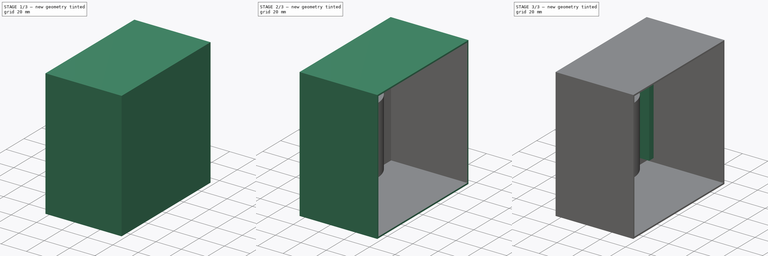
[diagram: build sequence overview — one tinted view per stage of 3, left to right]
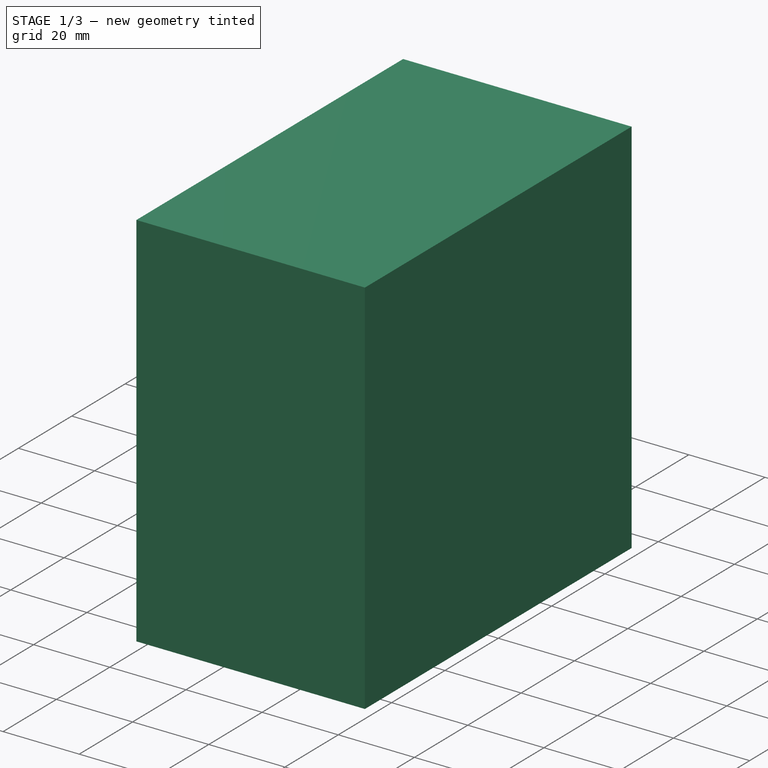
[diagram: stage 1 of 3 — iso view after this stage's code; geometry added in this stage tinted green]
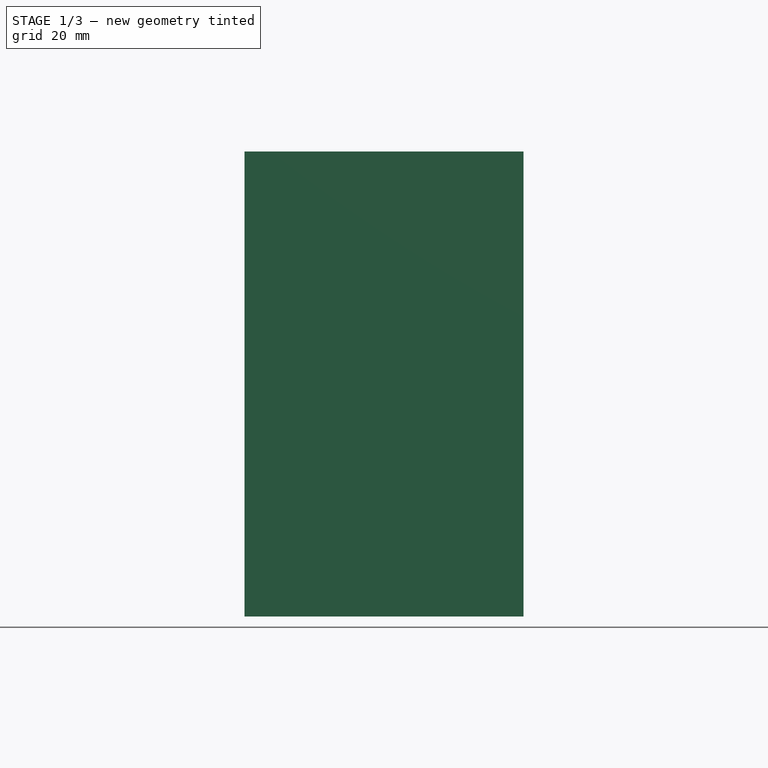
[diagram: stage 1 of 3 — front view after this stage's code; geometry added in this stage tinted green]
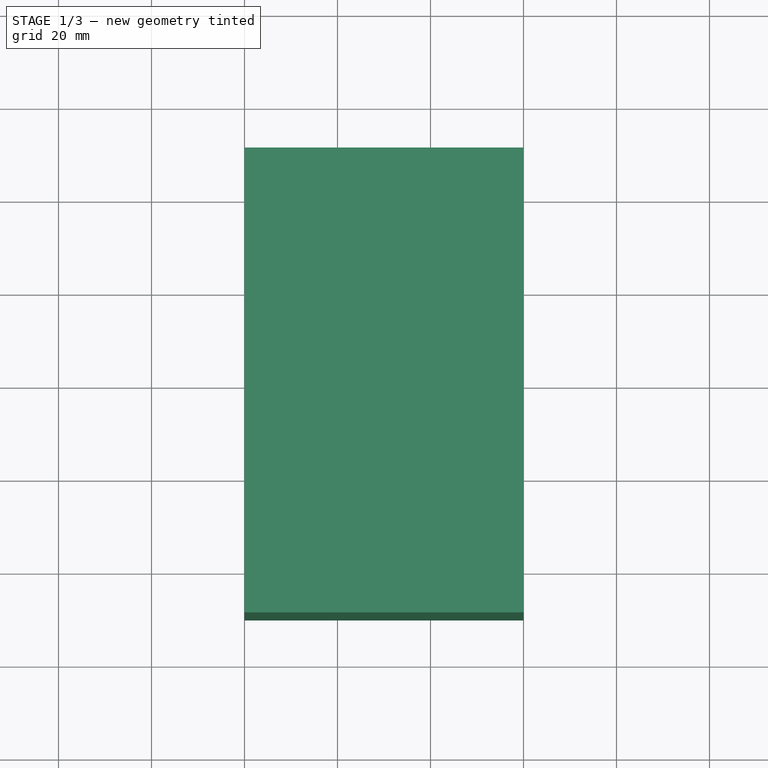
[diagram: stage 1 of 3 — top view after this stage's code; geometry added in this stage tinted green]
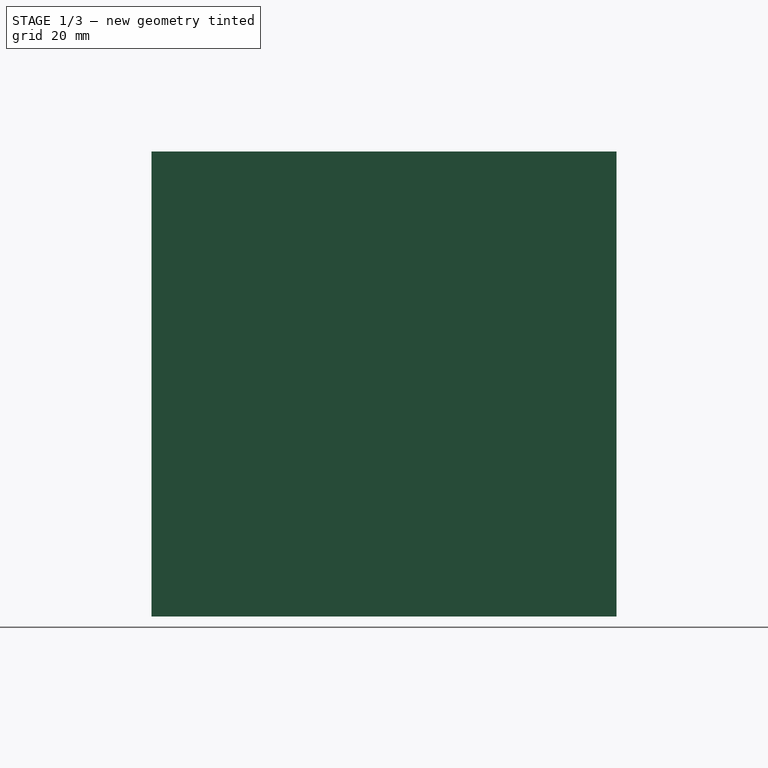
[diagram: stage 1 of 3 — right view after this stage's code; geometry added in this stage tinted green]
FCSTD DOCUMENT  (FreeCAD 0.22R38261 (Git))
Label: форма
License: All rights reserved
LicenseURL: https://en.wikipedia.org/wiki/All_rights_reserved
objects: Sketcher::SketchObject×4, PartDesign::Pad×2, PartDesign::AdditiveBox×1, PartDesign::Groove×1, PartDesign::Thickness×1, PartDesign::Plane×1, PartDesign::Body×1, App::Part×1
note: 21 computed .brp shape members not serialized (recipe doc carries the construction recipe); baked Part::Feature solids carry a one-line shape summary decoded from their .brp

FEATURE [Sketcher::SketchObject] Sketch
  AttachmentSupport = -> [YZ_Plane001]
  FullyConstrained = true
  MapMode = 5
  Placement = pos=(0,0,0) rot=(0.57735,0.57735,0.57735;2.0944rad)
  sketch-geometry (10):
    g0: LineSegment StartX=-20 StartY=0 StartZ=0 EndX=-7 EndY=13 EndZ=0
    g1: LineSegment StartX=-7 StartY=13 StartZ=0 EndX=-24 EndY=13 EndZ=0
    g2: LineSegment StartX=-24 StartY=13 StartZ=0 EndX=-24 EndY=66 EndZ=0
    g3: LineSegment StartX=-24 StartY=66 StartZ=0 EndX=0 EndY=66 EndZ=0
    g4: LineSegment StartX=0 StartY=66 StartZ=0 EndX=0 EndY=63 EndZ=0
    g5: LineSegment StartX=0 StartY=63 StartZ=0 EndX=-21 EndY=63 EndZ=0
    g6: LineSegment StartX=-21 StartY=63 StartZ=0 EndX=-21 EndY=16 EndZ=0
    g7: LineSegment StartX=-21 StartY=16 StartZ=0 EndX=-1 EndY=16 EndZ=0
    g8: LineSegment StartX=-1 StartY=16 StartZ=0 EndX=-17 EndY=0 EndZ=0
    g9: LineSegment StartX=-20 StartY=0 StartZ=0 EndX=-17 EndY=0 EndZ=0
  constraints (30):
    c: PointOnObject(g0,g-1)
    c: Angle(g0) = 0.785398
    c: DistanceX(g0,g-1) = 20
    c: DistanceX(g0,g-1) = 7
    c: Coincident(g1,g0)
    c: Horizontal(g1)
    c: DistanceX(g1,g-1) = 24
    c: Distance(g2) = 53
    c: Coincident(g2,g1)
    c: Vertical(g2)
    c: Coincident(g3,g2)
    c: PointOnObject(g3,g-2)
    c: Horizontal(g3)
    c: Coincident(g4,g3)
    c: PointOnObject(g4,g-2)
    c: DistanceY(g4,g4) = 3
    c: Coincident(g5,g4)
    c: Horizontal(g5)
    c: DistanceX(g2,g5) = 3
    c: Coincident(g6,g5)
    c: Vertical(g6)
    c: DistanceY(g1,g6) = 3
    c: Coincident(g7,g6)
    c: Horizontal(g7)
    c: Coincident(g8,g7)
    c: Angle(g7,g8) = 0.785398
    c: PointOnObject(g8,g-1)
    c: Coincident(g9,g0)
    c: Coincident(g9,g8)
    c: DistanceX(g9,g9) = 3
FEATURE [Sketcher::SketchObject] Sketch001
  AttachmentSupport = -> [YZ_Plane001]
  FullyConstrained = false
  MapMode = 5
  Placement = pos=(0,0,0) rot=(0.57735,0.57735,0.57735;2.0944rad)
  sketch-geometry (12):
    g0: LineSegment StartX=20 StartY=-2.4e-15 StartZ=0 EndX=55 EndY=0 EndZ=0
    g1: LineSegment StartX=-20 StartY=6.7e-15 StartZ=0 EndX=-55 EndY=0 EndZ=0
    g2: LineSegment StartX=-55 StartY=0 StartZ=0 EndX=-55 EndY=96 EndZ=0
    g3: LineSegment StartX=-55 StartY=96 StartZ=0 EndX=55 EndY=96 EndZ=0
    g4: LineSegment StartX=55 StartY=96 StartZ=0 EndX=55 EndY=0 EndZ=0
    g5: LineSegment StartX=-18 StartY=2 StartZ=0 EndX=-53 EndY=2 EndZ=0
    g6: LineSegment StartX=-53 StartY=2 StartZ=0 EndX=-53 EndY=94 EndZ=0
    g7: LineSegment StartX=-53 StartY=94 StartZ=0 EndX=53 EndY=94 EndZ=0
    g8: LineSegment StartX=53 StartY=94 StartZ=0 EndX=53 EndY=2 EndZ=0
    g9: LineSegment StartX=53 StartY=2 StartZ=0 EndX=18 EndY=2 EndZ=0
    g10: LineSegment StartX=-20 StartY=6.7e-15 StartZ=0 EndX=-18 EndY=2 EndZ=0
    g11: LineSegment StartX=18 StartY=2 StartZ=0 EndX=20 EndY=-2.4e-15 EndZ=0
  constraints (30):
    c: PointOnObject(g0,g-1)
    c: DistanceX(g0,g0) = 35
    c: PointOnObject(g1,g-1)
    c: Equal(g1,g0)
    c: Coincident(g2,g1)
    c: Vertical(g2)
    c: Coincident(g3,g2)
    c: Horizontal(g3)
    c: Coincident(g4,g0)
    c: Vertical(g4)
    c: Coincident(g3,g4)
    c: Horizontal(g5)
    c: DistanceX(g1,g5) = 2
    c: DistanceY(g1,g5) = 2
    c: DistanceX(g2,g6) = 2
    c: DistanceY(g6,g2) = 2
    c: Vertical(g6)
    c: Coincident(g7,g6)
    c: Horizontal(g7)
    c: Coincident(g8,g7)
    c: Vertical(g8)
    c: Coincident(g9,g8)
    c: Equal(g9,g5)
    c: Equal(g8,g6)
    c: Horizontal(g9)
    c: Coincident(g10,g1)
    c: Coincident(g10,g5)
    c: Coincident(g11,g9)
    c: Coincident(g11,g0)
    c: Equal(g11,g10)
FEATURE [PartDesign::AdditiveBox] Box
  AttacherType = Attacher::AttachEngine3D
  AttachmentOffset = pos=(-50,0,0) rot=(0,0,1;0rad)
  AttachmentSupport = -> [YZ_Plane001]
  Height = 60
  Length = 100
  MapMode = 5
  Placement = pos=(0,-50,0) rot=(0.57735,0.57735,0.57735;2.0944rad)
  Suppressed = false
  Width = 100
FEATURE [PartDesign::Groove] Groove
  Angle = 360
  Angle2 = 60
  Axis = (0,0,1)
  Base = (0,0,0)
  BaseFeature = -> Box
  Placement = pos=(0,-50,0) rot=(0.57735,0.57735,0.57735;2.0944rad)
  Profile = -> Sketch
  ReferenceAxis = -> Sketch [V_Axis]
  Reversed = true
  Suppressed = false
  Type = 0
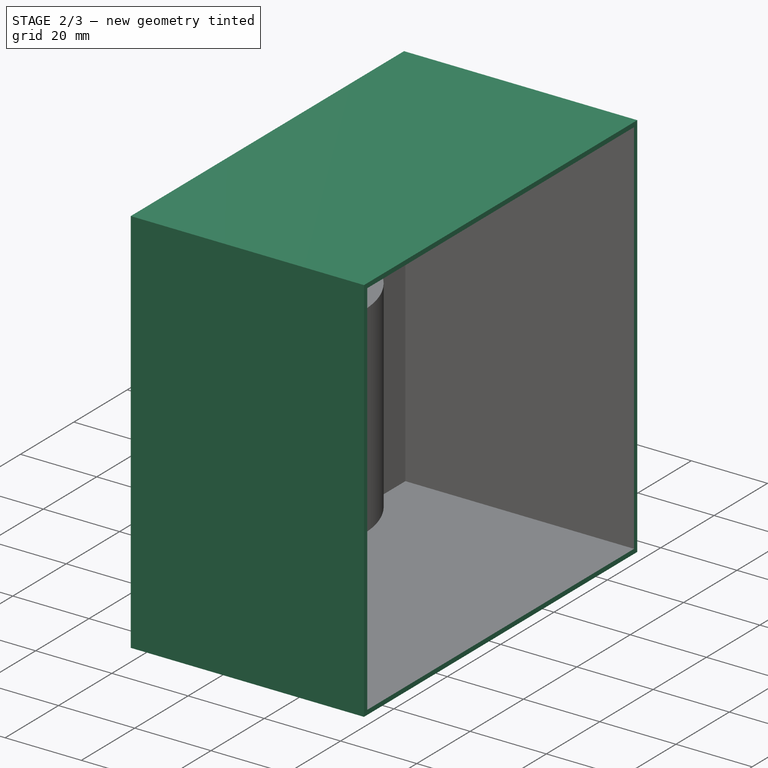
[diagram: stage 2 of 3 — iso view after this stage's code; geometry added in this stage tinted green]
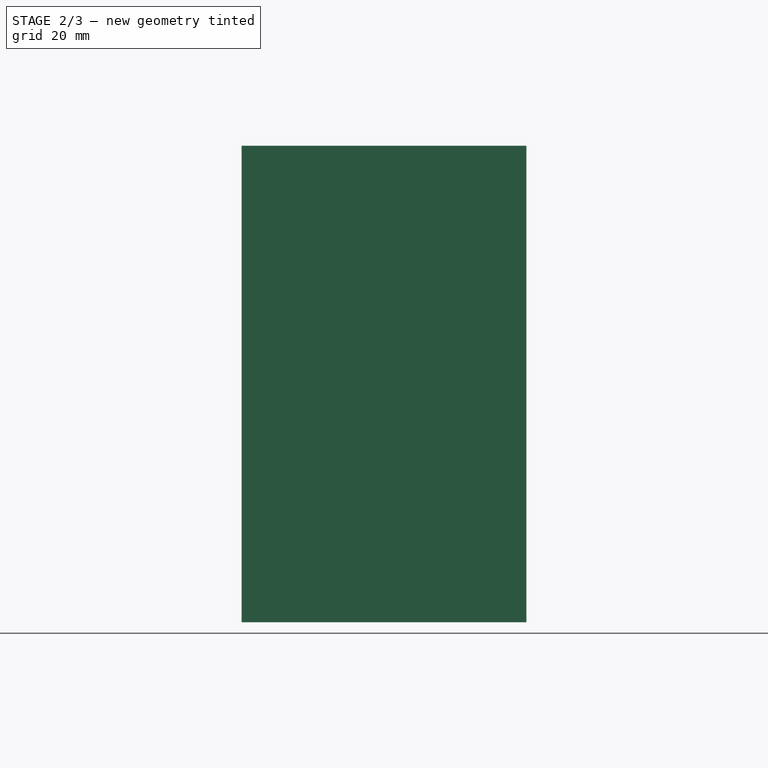
[diagram: stage 2 of 3 — front view after this stage's code; geometry added in this stage tinted green]
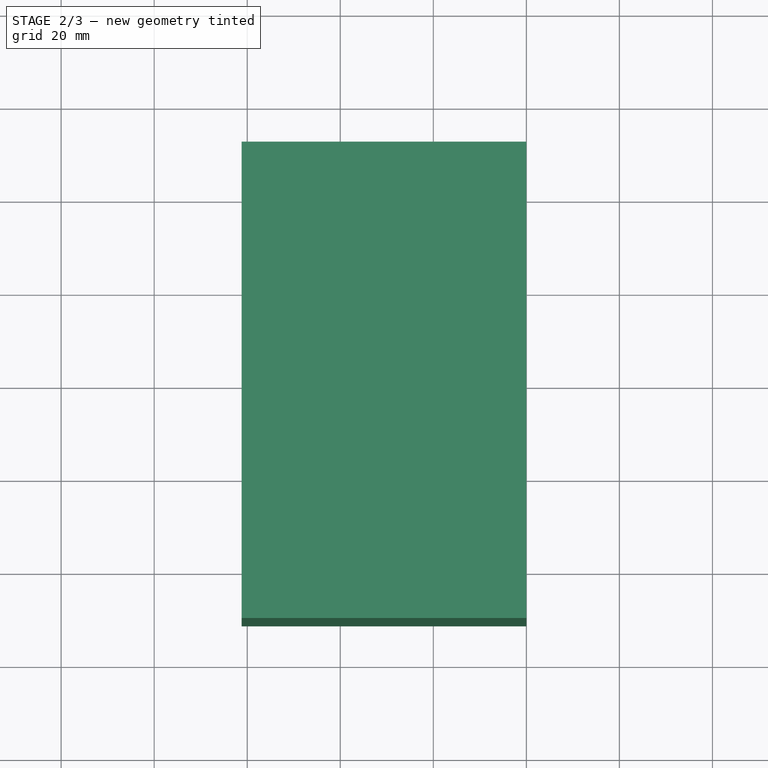
[diagram: stage 2 of 3 — top view after this stage's code; geometry added in this stage tinted green]
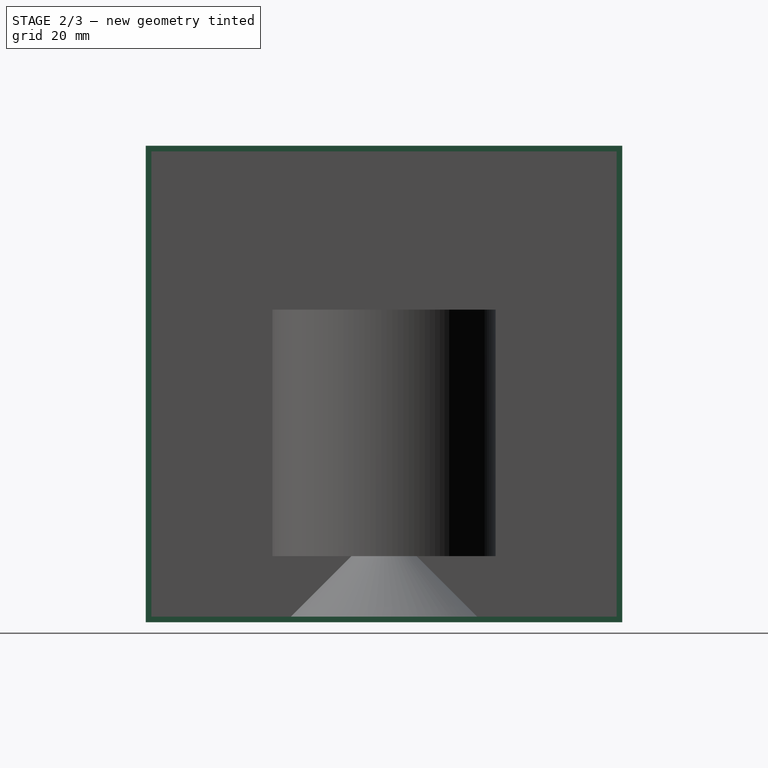
[diagram: stage 2 of 3 — right view after this stage's code; geometry added in this stage tinted green]
FEATURE [PartDesign::Thickness] Thickness
  Base = -> Groove [Face3]
  BaseFeature = -> Groove
  Intersection = false
  Join = 1
  Mode = 0
  SupportTransform = false
  Suppressed = false
  Value = 1.2
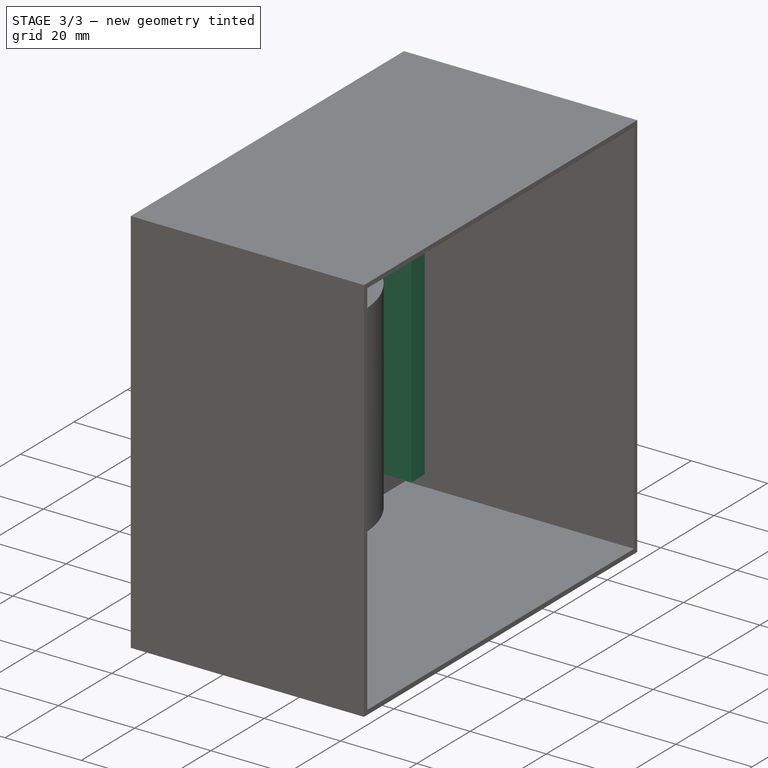
[diagram: stage 3 of 3 — iso view after this stage's code; geometry added in this stage tinted green]
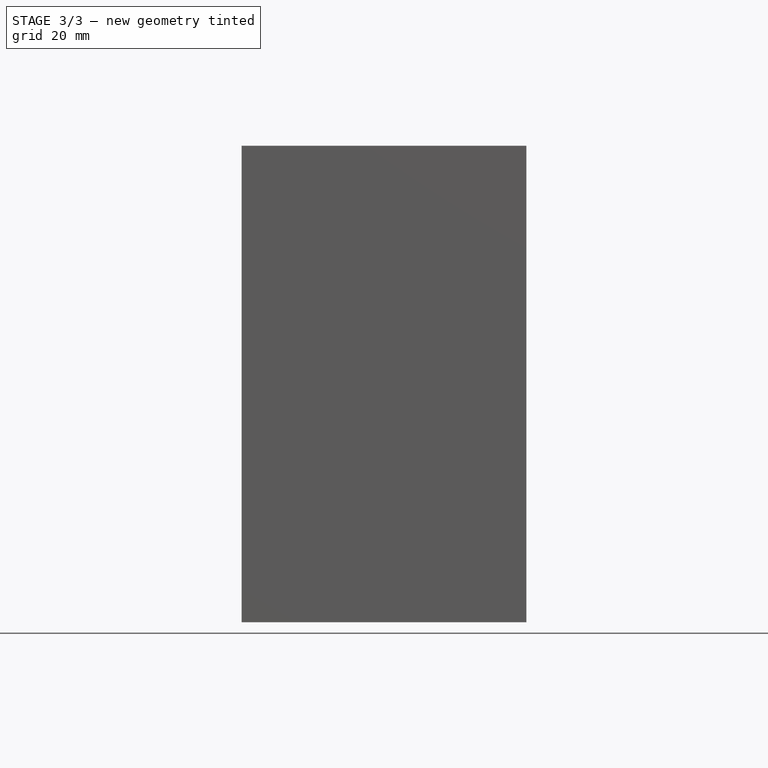
[diagram: stage 3 of 3 — front view after this stage's code; geometry added in this stage tinted green]
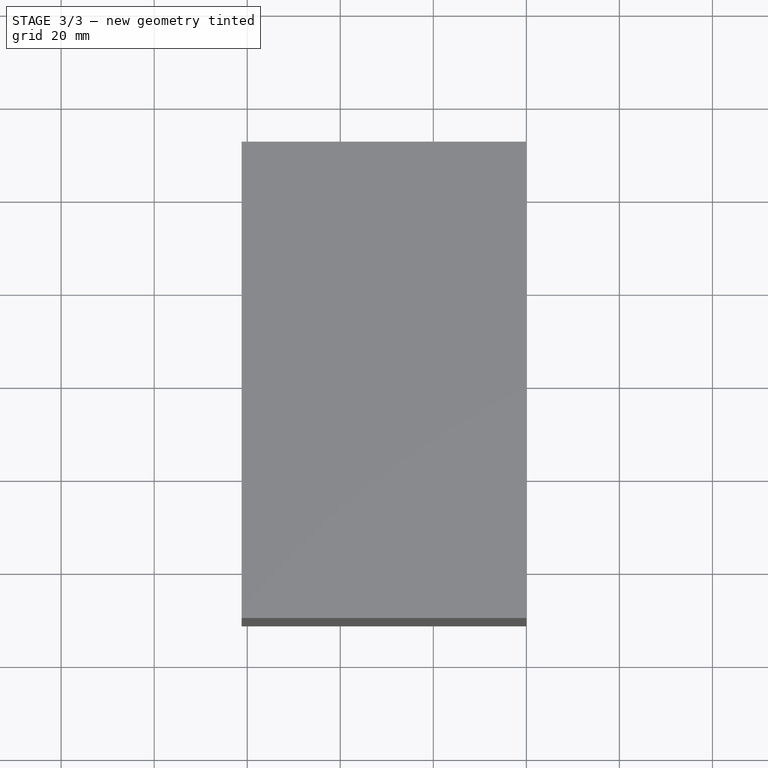
[diagram: stage 3 of 3 — top view after this stage's code; geometry added in this stage tinted green]
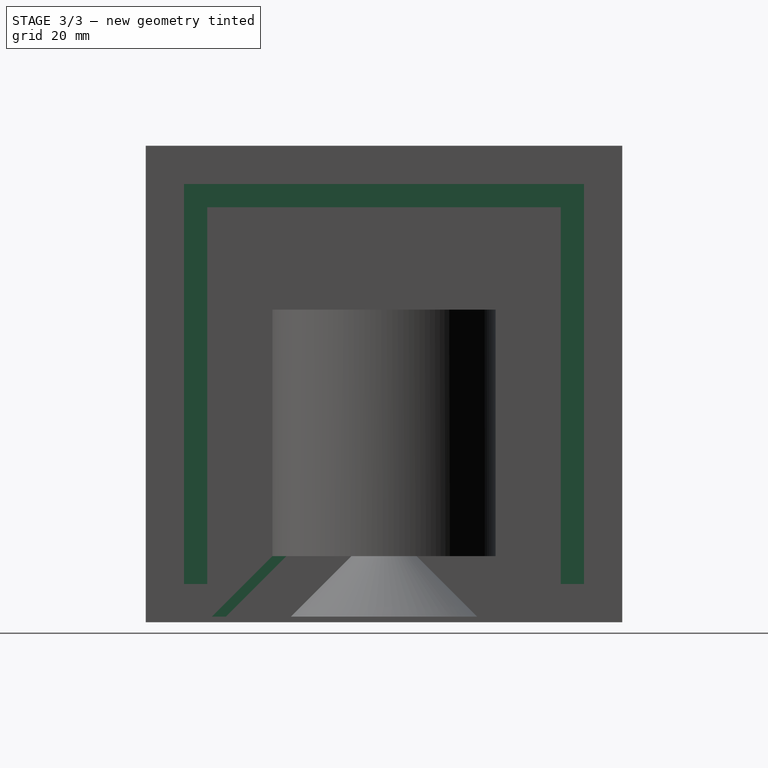
[diagram: stage 3 of 3 — right view after this stage's code; geometry added in this stage tinted green]
FEATURE [PartDesign::Plane] DatumPlane
  AttachmentSupport = -> [Thickness]
  Length = 125.136
  MapMode = 5
  Placement = pos=(0,0,0) rot=(0.57735,0.57735,0.57735;2.0944rad)
  ResizeMode = 0
  Width = 148.936
FEATURE [Sketcher::SketchObject] Sketch003
  AttachmentSupport = -> [Thickness]
  ExternalGeometry = -> [Thickness]
  FullyConstrained = true
  MapMode = 5
  Placement = pos=(0,0,0) rot=(0.57735,0.57735,0.57735;2.0944rad)
  sketch-geometry (8):
    g0: LineSegment StartX=-43 StartY=7 StartZ=0 EndX=-38 EndY=7 EndZ=0
    g1: LineSegment StartX=-38 StartY=7 StartZ=0 EndX=-38 EndY=88 EndZ=0
    g2: LineSegment StartX=-43 StartY=93 StartZ=0 EndX=-43 EndY=7 EndZ=0
    g3: LineSegment StartX=38 StartY=7 StartZ=0 EndX=43 EndY=7 EndZ=0
    g4: LineSegment StartX=43 StartY=7 StartZ=0 EndX=43 EndY=93 EndZ=0
    g5: LineSegment StartX=43 StartY=93 StartZ=0 EndX=-43 EndY=93 EndZ=0
    g6: LineSegment StartX=38 StartY=88 StartZ=0 EndX=38 EndY=7 EndZ=0
    g7: LineSegment StartX=-38 StartY=88 StartZ=0 EndX=38 EndY=88 EndZ=0
  constraints (24):
    c: Coincident(g0,g1)
    c: Coincident(g2,g0)
    c: Horizontal(g0)
    c: Vertical(g1)
    c: Vertical(g2)
    c: Coincident(g3,g4)
    c: Coincident(g4,g5)
    c: Coincident(g6,g3)
    c: Horizontal(g3)
    c: Horizontal(g5)
    c: Vertical(g4)
    c: Vertical(g6)
    c: Coincident(g7,g1)
    c: Coincident(g7,g6)
    c: Horizontal(g7)
    c: Coincident(g5,g2)
    c: DistanceX(g-3,g0) = 7
    c: DistanceX(g0,g0) = 5
    c: Equal(g3,g0)
    c: DistanceY(g2,g-4) = 7
    c: DistanceY(g6,g4) = 5
    c: Horizontal(g3,g0)
    c: DistanceX(g3,g-5) = 7
    c: DistanceY(g-3,g0) = 7
FEATURE [PartDesign::Pad] Pad
  BaseFeature = -> Thickness
  Direction = (1,0,0)
  Length = 10
  Length2 = 10
  Profile = -> Sketch003
  ReferenceAxis = -> Sketch003 [N_Axis]
  Suppressed = false
  Type = 0
FEATURE [Sketcher::SketchObject] Sketch004
  AttachmentSupport = -> [DatumPlane]
  ExternalGeometry = -> [Pad]
  FullyConstrained = true
  MapMode = 5
  Placement = pos=(0,0,0) rot=(0.57735,0.57735,0.57735;2.0944rad)
  sketch-geometry (4):
    g0: LineSegment StartX=-24 StartY=13 StartZ=0 EndX=-21 EndY=13 EndZ=0
    g1: LineSegment StartX=-24 StartY=13 StartZ=0 EndX=-37 EndY=3.6e-15 EndZ=0
    g2: LineSegment StartX=-21 StartY=13 StartZ=0 EndX=-34 EndY=3.6e-15 EndZ=0
    g3: LineSegment StartX=-37 StartY=3.6e-15 StartZ=0 EndX=-34 EndY=3.6e-15 EndZ=0
  constraints (11):
    c: Distance(g0) = 3
    c: Coincident(g0,g-3)
    c: PointOnObject(g0,g-3)
    c: Coincident(g1,g0)
    c: PointOnObject(g1,g-4)
    c: Angle(g-4,g1) = 0.785398
    c: Coincident(g2,g0)
    c: PointOnObject(g2,g-4)
    c: Angle(g-4,g2) = 0.785398
    c: Coincident(g3,g1)
    c: Coincident(g3,g2)
FEATURE [PartDesign::Pad] Pad001
  BaseFeature = -> Pad
  Direction = (1,0,0)
  Length = 3
  Length2 = 10
  Profile = -> Sketch004
  ReferenceAxis = -> Sketch004 [N_Axis]
  Suppressed = false
  Type = 0
FEATURE [PartDesign::Body] Body  label="Тело"
  AllowCompound = false
  Group = -> [Sketch,Sketch001,Box,Groove,Thickness,DatumPlane,Sketch003,Pad,Sketch004,Pad001]
  Origin = -> Origin001
  Tip = -> Pad001
FEATURE [App::Part] Part
  Group = -> [Body]
  Origin = -> Origin
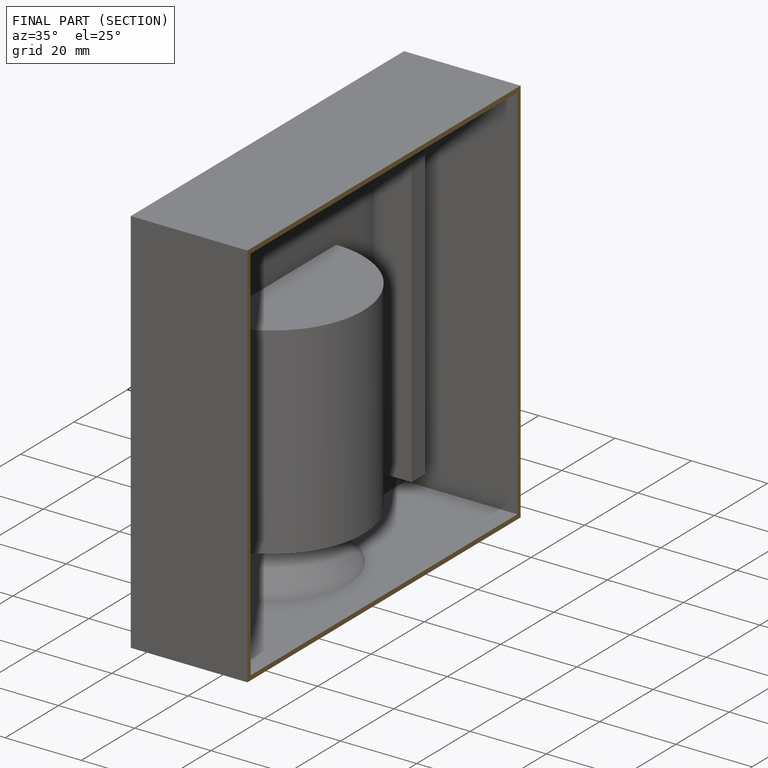
[diagram: finished part — half-section view (interior)]
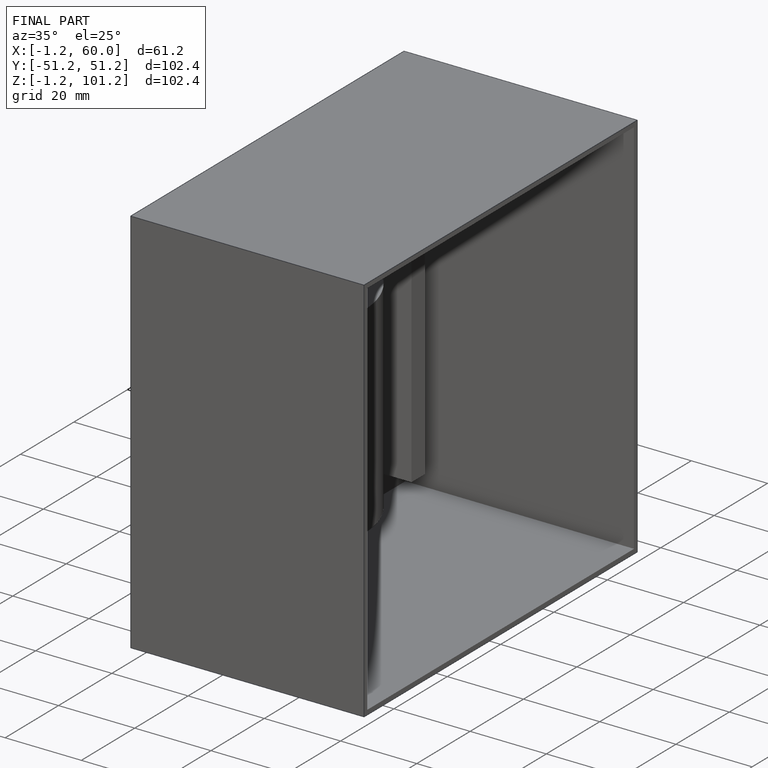
[diagram: finished part — iso view with bounding-box wireframe]
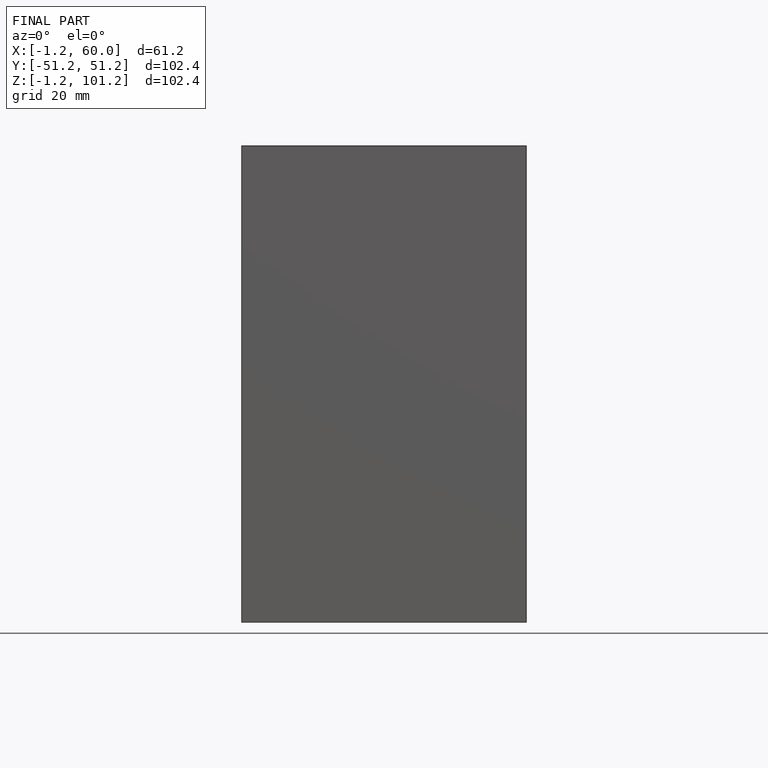
[diagram: finished part — front view with bounding-box wireframe]
